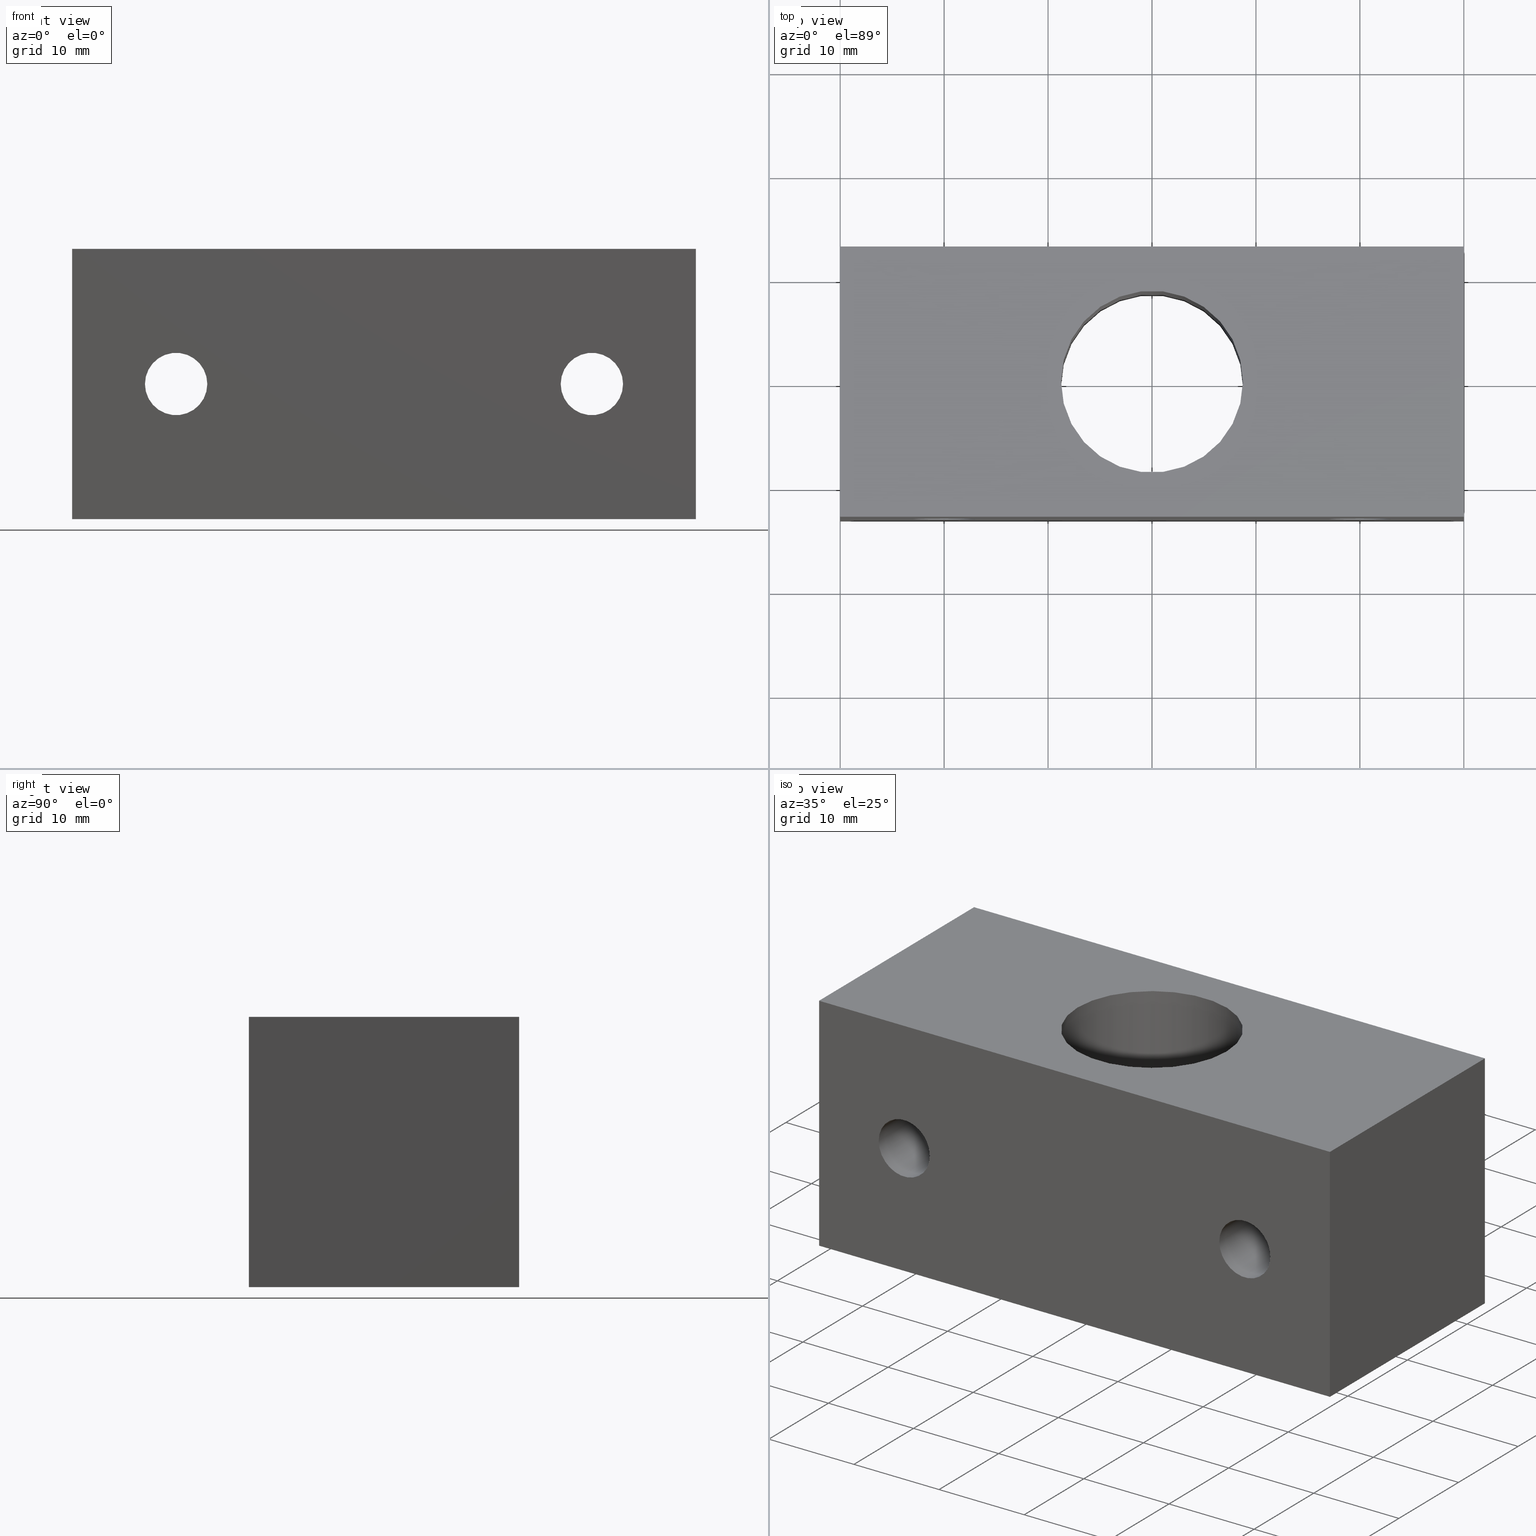
[diagram: canonical four-view strip — front | top / right | iso, engineering-drawing reading convention]
A machine part, canonical four-view strip (front | top / right | iso — engineering-drawing reading convention). The complete STEP part file that produces these views, byte-faithful:
ISO-10303-21;
HEADER;
/****************************************************************
 * Generated by software with PDE/Lib inside                    *
 * PDElib Version v4.4, created Mon 02/23/2004                  *
 * International Technegroup Inc. (www.iti-oh.com)              *
 ****************************************************************/
FILE_DESCRIPTION(('STEP AP203'),'2;1');
FILE_NAME('XT80112.stp','2011-02-02T13:28:22',(''),(''),'2009.3.110','THINKDESIGN','');
FILE_SCHEMA(('CONFIG_CONTROL_DESIGN'));
ENDSEC;
DATA;
#2=CARTESIAN_POINT('',(30.000000000000114,-13.0,-13.0));
#3=DIRECTION('',(1.0,0.0,0.0));
#4=DIRECTION('',(0.0,1.0,0.0));
#5=AXIS2_PLACEMENT_3D('',#2,#3,#4);
#6=PLANE('',#5);
#7=CARTESIAN_POINT('',(30.000000000000114,-13.0,-13.0));
#8=VERTEX_POINT('',#7);
#9=CARTESIAN_POINT('',(30.000000000000114,13.0,-13.0));
#10=VERTEX_POINT('',#9);
#11=CARTESIAN_POINT('',(30.000000000000114,-13.0,-13.0));
#12=DIRECTION('',(0.0,1.0,0.0));
#13=VECTOR('',#12,26.0);
#14=LINE('',#11,#13);
#15=EDGE_CURVE('',#8,#10,#14,.T.);
#16=ORIENTED_EDGE('',*,*,#15,.T.);
#17=CARTESIAN_POINT('',(30.000000000000114,13.0,13.0));
#18=VERTEX_POINT('',#17);
#19=CARTESIAN_POINT('',(30.000000000000114,13.0,-13.0));
#20=DIRECTION('',(0.0,0.0,1.0));
#21=VECTOR('',#20,26.0);
#22=LINE('',#19,#21);
#23=EDGE_CURVE('',#10,#18,#22,.T.);
#24=ORIENTED_EDGE('',*,*,#23,.T.);
#25=CARTESIAN_POINT('',(30.000000000000114,-13.0,13.0));
#26=VERTEX_POINT('',#25);
#27=CARTESIAN_POINT('',(30.000000000000114,-13.0,13.0));
#28=DIRECTION('',(0.0,1.0,0.0));
#29=VECTOR('',#28,26.0);
#30=LINE('',#27,#29);
#31=EDGE_CURVE('',#26,#18,#30,.T.);
#32=ORIENTED_EDGE('',*,*,#31,.F.);
#33=CARTESIAN_POINT('',(30.000000000000114,-13.0,-13.0));
#34=DIRECTION('',(0.0,0.0,1.0));
#35=VECTOR('',#34,26.0);
#36=LINE('',#33,#35);
#37=EDGE_CURVE('',#8,#26,#36,.T.);
#38=ORIENTED_EDGE('',*,*,#37,.F.);
#39=EDGE_LOOP('',(#16,#24,#32,#38));
#40=FACE_OUTER_BOUND('',#39,.T.);
#41=ADVANCED_FACE('',(#40),#6,.T.);
#42=CARTESIAN_POINT('',(30.000000000000114,13.0,-13.0));
#43=DIRECTION('',(0.0,1.0,0.0));
#44=DIRECTION('',(-1.0,0.0,0.0));
#45=AXIS2_PLACEMENT_3D('',#42,#43,#44);
#46=PLANE('',#45);
#47=CARTESIAN_POINT('',(-30.0,13.0,-13.0));
#48=VERTEX_POINT('',#47);
#49=CARTESIAN_POINT('',(30.000000000000114,13.0,-13.0));
#50=DIRECTION('',(-1.0,0.0,0.0));
#51=VECTOR('',#50,60.000000000000114);
#52=LINE('',#49,#51);
#53=EDGE_CURVE('',#10,#48,#52,.T.);
#54=ORIENTED_EDGE('',*,*,#53,.T.);
#55=CARTESIAN_POINT('',(-30.0,13.0,13.0));
#56=VERTEX_POINT('',#55);
#57=CARTESIAN_POINT('',(-30.0,13.0,-13.0));
#58=DIRECTION('',(0.0,0.0,1.0));
#59=VECTOR('',#58,26.0);
#60=LINE('',#57,#59);
#61=EDGE_CURVE('',#48,#56,#60,.T.);
#62=ORIENTED_EDGE('',*,*,#61,.T.);
#63=CARTESIAN_POINT('',(30.000000000000114,13.0,13.0));
#64=DIRECTION('',(-1.0,0.0,0.0));
#65=VECTOR('',#64,60.000000000000114);
#66=LINE('',#63,#65);
#67=EDGE_CURVE('',#18,#56,#66,.T.);
#68=ORIENTED_EDGE('',*,*,#67,.F.);
#69=ORIENTED_EDGE('',*,*,#23,.F.);
#70=EDGE_LOOP('',(#54,#62,#68,#69));
#71=FACE_OUTER_BOUND('',#70,.T.);
#72=CARTESIAN_POINT('',(14.750000000000000,13.0,0.0));
#73=VERTEX_POINT('',#72);
#74=CARTESIAN_POINT('',(25.250000000000000,13.0,0.0));
#75=VERTEX_POINT('',#74);
#76=CARTESIAN_POINT('',(20.0,13.0,0.0));
#77=DIRECTION('',(0.0,1.0,6.123234E-017));
#78=DIRECTION('',(1.0,0.0,0.0));
#79=AXIS2_PLACEMENT_3D('',#76,#77,#78);
#80=CIRCLE('',#79,5.250000000000000);
#81=EDGE_CURVE('',#73,#75,#80,.T.);
#82=ORIENTED_EDGE('',*,*,#81,.F.);
#83=CARTESIAN_POINT('',(20.0,13.0,0.0));
#84=DIRECTION('',(0.0,1.0,6.123234E-017));
#85=DIRECTION('',(1.0,0.0,0.0));
#86=AXIS2_PLACEMENT_3D('',#83,#84,#85);
#87=CIRCLE('',#86,5.250000000000000);
#88=EDGE_CURVE('',#75,#73,#87,.T.);
#89=ORIENTED_EDGE('',*,*,#88,.F.);
#90=EDGE_LOOP('',(#82,#89));
#91=FACE_BOUND('',#90,.T.);
#92=CARTESIAN_POINT('',(-25.249999999999886,13.0,0.0));
#93=VERTEX_POINT('',#92);
#94=CARTESIAN_POINT('',(-14.749999999999886,13.0,0.0));
#95=VERTEX_POINT('',#94);
#96=CARTESIAN_POINT('',(-19.999999999999886,13.0,0.0));
#97=DIRECTION('',(0.0,1.0,6.123234E-017));
#98=DIRECTION('',(1.0,0.0,0.0));
#99=AXIS2_PLACEMENT_3D('',#96,#97,#98);
#100=CIRCLE('',#99,5.250000000000000);
#101=EDGE_CURVE('',#93,#95,#100,.T.);
#102=ORIENTED_EDGE('',*,*,#101,.F.);
#103=CARTESIAN_POINT('',(-19.999999999999886,13.0,0.0));
#104=DIRECTION('',(0.0,1.0,6.123234E-017));
#105=DIRECTION('',(1.0,0.0,0.0));
#106=AXIS2_PLACEMENT_3D('',#103,#104,#105);
#107=CIRCLE('',#106,5.250000000000000);
#108=EDGE_CURVE('',#95,#93,#107,.T.);
#109=ORIENTED_EDGE('',*,*,#108,.F.);
#110=EDGE_LOOP('',(#102,#109));
#111=FACE_BOUND('',#110,.T.);
#112=ADVANCED_FACE('',(#71,#91,#111),#46,.T.);
#113=CARTESIAN_POINT('',(-30.0,13.0,-13.0));
#114=DIRECTION('',(-1.0,0.0,0.0));
#115=DIRECTION('',(0.0,-1.0,0.0));
#116=AXIS2_PLACEMENT_3D('',#113,#114,#115);
#117=PLANE('',#116);
#118=CARTESIAN_POINT('',(-30.0,-13.0,-13.0));
#119=VERTEX_POINT('',#118);
#120=CARTESIAN_POINT('',(-30.0,13.0,-13.0));
#121=DIRECTION('',(0.0,-1.0,0.0));
#122=VECTOR('',#121,26.0);
#123=LINE('',#120,#122);
#124=EDGE_CURVE('',#48,#119,#123,.T.);
#125=ORIENTED_EDGE('',*,*,#124,.T.);
#126=CARTESIAN_POINT('',(-30.0,-13.0,13.0));
#127=VERTEX_POINT('',#126);
#128=CARTESIAN_POINT('',(-30.0,-13.0,-13.0));
#129=DIRECTION('',(0.0,0.0,1.0));
#130=VECTOR('',#129,26.0);
#131=LINE('',#128,#130);
#132=EDGE_CURVE('',#119,#127,#131,.T.);
#133=ORIENTED_EDGE('',*,*,#132,.T.);
#134=CARTESIAN_POINT('',(-30.0,13.0,13.0));
#135=DIRECTION('',(0.0,-1.0,0.0));
#136=VECTOR('',#135,26.0);
#137=LINE('',#134,#136);
#138=EDGE_CURVE('',#56,#127,#137,.T.);
#139=ORIENTED_EDGE('',*,*,#138,.F.);
#140=ORIENTED_EDGE('',*,*,#61,.F.);
#141=EDGE_LOOP('',(#125,#133,#139,#140));
#142=FACE_OUTER_BOUND('',#141,.T.);
#143=ADVANCED_FACE('',(#142),#117,.T.);
#144=CARTESIAN_POINT('',(-30.0,-13.0,-13.0));
#145=DIRECTION('',(0.0,-1.0,0.0));
#146=DIRECTION('',(1.0,0.0,0.0));
#147=AXIS2_PLACEMENT_3D('',#144,#145,#146);
#148=PLANE('',#147);
#149=ORIENTED_EDGE('',*,*,#37,.T.);
#150=CARTESIAN_POINT('',(-30.0,-13.0,13.0));
#151=DIRECTION('',(1.0,0.0,0.0));
#152=VECTOR('',#151,60.000000000000114);
#153=LINE('',#150,#152);
#154=EDGE_CURVE('',#127,#26,#153,.T.);
#155=ORIENTED_EDGE('',*,*,#154,.F.);
#156=ORIENTED_EDGE('',*,*,#132,.F.);
#157=CARTESIAN_POINT('',(-30.0,-13.0,-13.0));
#158=DIRECTION('',(1.0,0.0,0.0));
#159=VECTOR('',#158,60.000000000000114);
#160=LINE('',#157,#159);
#161=EDGE_CURVE('',#119,#8,#160,.T.);
#162=ORIENTED_EDGE('',*,*,#161,.T.);
#163=EDGE_LOOP('',(#149,#155,#156,#162));
#164=FACE_OUTER_BOUND('',#163,.T.);
#165=CARTESIAN_POINT('',(-16.999999999999886,-13.0,0.0));
#166=VERTEX_POINT('',#165);
#167=CARTESIAN_POINT('',(-22.999999999999876,-13.0,0.0));
#168=VERTEX_POINT('',#167);
#169=CARTESIAN_POINT('',(-19.999999999999886,-13.0,0.0));
#170=DIRECTION('',(0.0,1.0,6.123234E-017));
#171=DIRECTION('',(1.0,0.0,0.0));
#172=AXIS2_PLACEMENT_3D('',#169,#170,#171);
#173=CIRCLE('',#172,2.999999999999988);
#174=EDGE_CURVE('',#166,#168,#173,.T.);
#175=ORIENTED_EDGE('',*,*,#174,.T.);
#176=CARTESIAN_POINT('',(-19.999999999999886,-13.0,0.0));
#177=DIRECTION('',(0.0,1.0,6.123234E-017));
#178=DIRECTION('',(1.0,0.0,0.0));
#179=AXIS2_PLACEMENT_3D('',#176,#177,#178);
#180=CIRCLE('',#179,2.999999999999988);
#181=EDGE_CURVE('',#168,#166,#180,.T.);
#182=ORIENTED_EDGE('',*,*,#181,.T.);
#183=EDGE_LOOP('',(#175,#182));
#184=FACE_BOUND('',#183,.T.);
#185=CARTESIAN_POINT('',(23.0,-13.0,0.0));
#186=VERTEX_POINT('',#185);
#187=CARTESIAN_POINT('',(17.000000000000011,-13.0,0.0));
#188=VERTEX_POINT('',#187);
#189=CARTESIAN_POINT('',(20.0,-13.0,0.0));
#190=DIRECTION('',(0.0,1.0,6.123234E-017));
#191=DIRECTION('',(1.0,0.0,0.0));
#192=AXIS2_PLACEMENT_3D('',#189,#190,#191);
#193=CIRCLE('',#192,2.999999999999988);
#194=EDGE_CURVE('',#186,#188,#193,.T.);
#195=ORIENTED_EDGE('',*,*,#194,.T.);
#196=CARTESIAN_POINT('',(20.0,-13.0,0.0));
#197=DIRECTION('',(0.0,1.0,6.123234E-017));
#198=DIRECTION('',(1.0,0.0,0.0));
#199=AXIS2_PLACEMENT_3D('',#196,#197,#198);
#200=CIRCLE('',#199,2.999999999999988);
#201=EDGE_CURVE('',#188,#186,#200,.T.);
#202=ORIENTED_EDGE('',*,*,#201,.T.);
#203=EDGE_LOOP('',(#195,#202));
#204=FACE_BOUND('',#203,.T.);
#205=ADVANCED_FACE('',(#164,#184,#204),#148,.T.);
#206=CARTESIAN_POINT('',(-36.000120001825735,-15.600120001972186,-13.0));
#207=DIRECTION('',(0.0,0.0,1.0));
#208=DIRECTION('',(1.0,0.0,0.0));
#209=AXIS2_PLACEMENT_3D('',#206,#207,#208);
#210=PLANE('',#209);
#211=ORIENTED_EDGE('',*,*,#161,.F.);
#212=ORIENTED_EDGE('',*,*,#124,.F.);
#213=ORIENTED_EDGE('',*,*,#53,.F.);
#214=ORIENTED_EDGE('',*,*,#15,.F.);
#215=EDGE_LOOP('',(#211,#212,#213,#214));
#216=FACE_OUTER_BOUND('',#215,.T.);
#217=CARTESIAN_POINT('',(-8.750000000000000,0.0,-13.0));
#218=VERTEX_POINT('',#217);
#219=CARTESIAN_POINT('',(8.750000000000000,0.0,-13.0));
#220=VERTEX_POINT('',#219);
#221=CARTESIAN_POINT('',(0.0,0.0,-13.0));
#222=DIRECTION('',(0.0,0.0,-1.0));
#223=DIRECTION('',(1.0,0.0,0.0));
#224=AXIS2_PLACEMENT_3D('',#221,#222,#223);
#225=CIRCLE('',#224,8.750000000000000);
#226=EDGE_CURVE('',#218,#220,#225,.T.);
#227=ORIENTED_EDGE('',*,*,#226,.F.);
#228=CARTESIAN_POINT('',(0.0,0.0,-13.0));
#229=DIRECTION('',(0.0,0.0,-1.0));
#230=DIRECTION('',(1.0,0.0,0.0));
#231=AXIS2_PLACEMENT_3D('',#228,#229,#230);
#232=CIRCLE('',#231,8.750000000000000);
#233=EDGE_CURVE('',#220,#218,#232,.T.);
#234=ORIENTED_EDGE('',*,*,#233,.F.);
#235=EDGE_LOOP('',(#227,#234));
#236=FACE_BOUND('',#235,.T.);
#237=ADVANCED_FACE('',(#216,#236),#210,.F.);
#238=CARTESIAN_POINT('',(-36.000120001825735,-15.600120001972186,13.0));
#239=DIRECTION('',(0.0,0.0,1.0));
#240=DIRECTION('',(1.0,0.0,0.0));
#241=AXIS2_PLACEMENT_3D('',#238,#239,#240);
#242=PLANE('',#241);
#243=ORIENTED_EDGE('',*,*,#31,.T.);
#244=ORIENTED_EDGE('',*,*,#67,.T.);
#245=ORIENTED_EDGE('',*,*,#138,.T.);
#246=ORIENTED_EDGE('',*,*,#154,.T.);
#247=EDGE_LOOP('',(#243,#244,#245,#246));
#248=FACE_OUTER_BOUND('',#247,.T.);
#249=CARTESIAN_POINT('',(-8.750000000000000,0.0,13.0));
#250=VERTEX_POINT('',#249);
#251=CARTESIAN_POINT('',(8.750000000000000,0.0,13.0));
#252=VERTEX_POINT('',#251);
#253=CARTESIAN_POINT('',(0.0,0.0,13.0));
#254=DIRECTION('',(0.0,0.0,1.0));
#255=DIRECTION('',(1.0,0.0,0.0));
#256=AXIS2_PLACEMENT_3D('',#253,#254,#255);
#257=CIRCLE('',#256,8.750000000000000);
#258=EDGE_CURVE('',#250,#252,#257,.T.);
#259=ORIENTED_EDGE('',*,*,#258,.F.);
#260=CARTESIAN_POINT('',(0.0,0.0,13.0));
#261=DIRECTION('',(0.0,0.0,1.0));
#262=DIRECTION('',(1.0,0.0,0.0));
#263=AXIS2_PLACEMENT_3D('',#260,#261,#262);
#264=CIRCLE('',#263,8.750000000000000);
#265=EDGE_CURVE('',#252,#250,#264,.T.);
#266=ORIENTED_EDGE('',*,*,#265,.F.);
#267=EDGE_LOOP('',(#259,#266));
#268=FACE_BOUND('',#267,.T.);
#269=ADVANCED_FACE('',(#248,#268),#242,.T.);
#270=CARTESIAN_POINT('',(0.0,0.0,13.0));
#271=DIRECTION('',(0.0,0.0,1.0));
#272=DIRECTION('',(1.0,0.0,0.0));
#273=AXIS2_PLACEMENT_3D('',#270,#271,#272);
#274=CYLINDRICAL_SURFACE('',#273,8.750000000000000);
#275=CARTESIAN_POINT('',(8.750000000000000,0.0,13.0));
#276=DIRECTION('',(0.0,0.0,-1.0));
#277=VECTOR('',#276,26.0);
#278=LINE('',#275,#277);
#279=EDGE_CURVE('',#252,#220,#278,.T.);
#280=ORIENTED_EDGE('',*,*,#279,.T.);
#281=ORIENTED_EDGE('',*,*,#233,.T.);
#282=ORIENTED_EDGE('',*,*,#226,.T.);
#283=ORIENTED_EDGE('',*,*,#279,.F.);
#284=ORIENTED_EDGE('',*,*,#265,.T.);
#285=ORIENTED_EDGE('',*,*,#258,.T.);
#286=EDGE_LOOP('',(#280,#281,#282,#283,#284,#285));
#287=FACE_OUTER_BOUND('',#286,.T.);
#288=ADVANCED_FACE('',(#287),#274,.F.);
#289=CARTESIAN_POINT('',(-19.999999999999886,13.0,0.0));
#290=DIRECTION('',(0.0,1.0,6.123234E-017));
#291=DIRECTION('',(1.0,0.0,0.0));
#292=AXIS2_PLACEMENT_3D('',#289,#290,#291);
#293=CYLINDRICAL_SURFACE('',#292,2.999999999999988);
#294=ORIENTED_EDGE('',*,*,#181,.F.);
#295=ORIENTED_EDGE('',*,*,#174,.F.);
#296=CARTESIAN_POINT('',(-16.999999999999886,7.000004422703000,0.0));
#297=VERTEX_POINT('',#296);
#298=CARTESIAN_POINT('',(-16.999999999999886,7.000004422702999,0.0));
#299=DIRECTION('',(0.0,-1.0,0.0));
#300=VECTOR('',#299,20.000004422703004);
#301=LINE('',#298,#300);
#302=EDGE_CURVE('',#297,#166,#301,.T.);
#303=ORIENTED_EDGE('',*,*,#302,.F.);
#304=CARTESIAN_POINT('',(-22.999999999999876,7.000004422703000,0.0));
#305=VERTEX_POINT('',#304);
#306=CARTESIAN_POINT('',(-19.999999999999886,7.000004422703000,0.0));
#307=DIRECTION('',(0.0,1.0,6.123234E-017));
#308=DIRECTION('',(1.0,0.0,0.0));
#309=AXIS2_PLACEMENT_3D('',#306,#307,#308);
#310=CIRCLE('',#309,2.999999999999988);
#311=EDGE_CURVE('',#297,#305,#310,.T.);
#312=ORIENTED_EDGE('',*,*,#311,.T.);
#313=CARTESIAN_POINT('',(-19.999999999999886,7.000004422703000,0.0));
#314=DIRECTION('',(0.0,1.0,6.123234E-017));
#315=DIRECTION('',(1.0,0.0,0.0));
#316=AXIS2_PLACEMENT_3D('',#313,#314,#315);
#317=CIRCLE('',#316,2.999999999999988);
#318=EDGE_CURVE('',#305,#297,#317,.T.);
#319=ORIENTED_EDGE('',*,*,#318,.T.);
#320=ORIENTED_EDGE('',*,*,#302,.T.);
#321=EDGE_LOOP('',(#294,#295,#303,#312,#319,#320));
#322=FACE_OUTER_BOUND('',#321,.T.);
#323=ADVANCED_FACE('',(#322),#293,.F.);
#324=CARTESIAN_POINT('',(20.0,13.0,0.0));
#325=DIRECTION('',(0.0,1.0,6.123234E-017));
#326=DIRECTION('',(1.0,0.0,0.0));
#327=AXIS2_PLACEMENT_3D('',#324,#325,#326);
#328=CYLINDRICAL_SURFACE('',#327,2.999999999999988);
#329=ORIENTED_EDGE('',*,*,#201,.F.);
#330=ORIENTED_EDGE('',*,*,#194,.F.);
#331=CARTESIAN_POINT('',(23.0,7.000004422703000,0.0));
#332=VERTEX_POINT('',#331);
#333=CARTESIAN_POINT('',(23.0,7.000004422702999,0.0));
#334=DIRECTION('',(0.0,-1.0,0.0));
#335=VECTOR('',#334,20.000004422703004);
#336=LINE('',#333,#335);
#337=EDGE_CURVE('',#332,#186,#336,.T.);
#338=ORIENTED_EDGE('',*,*,#337,.F.);
#339=CARTESIAN_POINT('',(17.000000000000011,7.000004422703000,0.0));
#340=VERTEX_POINT('',#339);
#341=CARTESIAN_POINT('',(20.0,7.000004422703000,0.0));
#342=DIRECTION('',(0.0,1.0,6.123234E-017));
#343=DIRECTION('',(1.0,0.0,0.0));
#344=AXIS2_PLACEMENT_3D('',#341,#342,#343);
#345=CIRCLE('',#344,2.999999999999988);
#346=EDGE_CURVE('',#332,#340,#345,.T.);
#347=ORIENTED_EDGE('',*,*,#346,.T.);
#348=CARTESIAN_POINT('',(20.0,7.000004422703000,0.0));
#349=DIRECTION('',(0.0,1.0,6.123234E-017));
#350=DIRECTION('',(1.0,0.0,0.0));
#351=AXIS2_PLACEMENT_3D('',#348,#349,#350);
#352=CIRCLE('',#351,2.999999999999988);
#353=EDGE_CURVE('',#340,#332,#352,.T.);
#354=ORIENTED_EDGE('',*,*,#353,.T.);
#355=ORIENTED_EDGE('',*,*,#337,.T.);
#356=EDGE_LOOP('',(#329,#330,#338,#347,#354,#355));
#357=FACE_OUTER_BOUND('',#356,.T.);
#358=ADVANCED_FACE('',(#357),#328,.F.);
#359=CARTESIAN_POINT('',(20.0,13.0,0.0));
#360=DIRECTION('',(0.0,1.0,6.123234E-017));
#361=DIRECTION('',(1.0,0.0,0.0));
#362=AXIS2_PLACEMENT_3D('',#359,#360,#361);
#363=CYLINDRICAL_SURFACE('',#362,5.250000000000000);
#364=CARTESIAN_POINT('',(14.750000000000000,7.000004422703000,0.0));
#365=VERTEX_POINT('',#364);
#366=CARTESIAN_POINT('',(25.250000000000000,7.000004422703000,0.0));
#367=VERTEX_POINT('',#366);
#368=CARTESIAN_POINT('',(20.0,7.000004422703000,0.0));
#369=DIRECTION('',(0.0,1.0,6.123234E-017));
#370=DIRECTION('',(1.0,0.0,0.0));
#371=AXIS2_PLACEMENT_3D('',#368,#369,#370);
#372=CIRCLE('',#371,5.250000000000000);
#373=EDGE_CURVE('',#365,#367,#372,.T.);
#374=ORIENTED_EDGE('',*,*,#373,.F.);
#375=CARTESIAN_POINT('',(20.0,7.000004422703000,0.0));
#376=DIRECTION('',(0.0,1.0,6.123234E-017));
#377=DIRECTION('',(1.0,0.0,0.0));
#378=AXIS2_PLACEMENT_3D('',#375,#376,#377);
#379=CIRCLE('',#378,5.250000000000000);
#380=EDGE_CURVE('',#367,#365,#379,.T.);
#381=ORIENTED_EDGE('',*,*,#380,.F.);
#382=CARTESIAN_POINT('',(25.250000000000000,13.0,0.0));
#383=DIRECTION('',(0.0,-1.0,0.0));
#384=VECTOR('',#383,5.999995577297000);
#385=LINE('',#382,#384);
#386=EDGE_CURVE('',#75,#367,#385,.T.);
#387=ORIENTED_EDGE('',*,*,#386,.F.);
#388=ORIENTED_EDGE('',*,*,#88,.T.);
#389=ORIENTED_EDGE('',*,*,#81,.T.);
#390=ORIENTED_EDGE('',*,*,#386,.T.);
#391=EDGE_LOOP('',(#374,#381,#387,#388,#389,#390));
#392=FACE_OUTER_BOUND('',#391,.T.);
#393=ADVANCED_FACE('',(#392),#363,.F.);
#394=CARTESIAN_POINT('',(26.300120000064567,7.000004422703000,-6.300120000066912));
#395=DIRECTION('',(0.0,1.0,0.0));
#396=DIRECTION('',(-1.0,0.0,0.0));
#397=AXIS2_PLACEMENT_3D('',#394,#395,#396);
#398=PLANE('',#397);
#399=ORIENTED_EDGE('',*,*,#380,.T.);
#400=ORIENTED_EDGE('',*,*,#373,.T.);
#401=EDGE_LOOP('',(#399,#400));
#402=FACE_OUTER_BOUND('',#401,.T.);
#403=ORIENTED_EDGE('',*,*,#353,.F.);
#404=ORIENTED_EDGE('',*,*,#346,.F.);
#405=EDGE_LOOP('',(#403,#404));
#406=FACE_BOUND('',#405,.T.);
#407=ADVANCED_FACE('',(#402,#406),#398,.T.);
#408=CARTESIAN_POINT('',(-19.999999999999886,13.0,0.0));
#409=DIRECTION('',(0.0,1.0,6.123234E-017));
#410=DIRECTION('',(1.0,0.0,0.0));
#411=AXIS2_PLACEMENT_3D('',#408,#409,#410);
#412=CYLINDRICAL_SURFACE('',#411,5.250000000000000);
#413=CARTESIAN_POINT('',(-25.249999999999886,7.000004422703000,0.0));
#414=VERTEX_POINT('',#413);
#415=CARTESIAN_POINT('',(-14.749999999999886,7.000004422703000,0.0));
#416=VERTEX_POINT('',#415);
#417=CARTESIAN_POINT('',(-19.999999999999886,7.000004422703000,0.0));
#418=DIRECTION('',(0.0,1.0,6.123234E-017));
#419=DIRECTION('',(1.0,0.0,0.0));
#420=AXIS2_PLACEMENT_3D('',#417,#418,#419);
#421=CIRCLE('',#420,5.250000000000000);
#422=EDGE_CURVE('',#414,#416,#421,.T.);
#423=ORIENTED_EDGE('',*,*,#422,.F.);
#424=CARTESIAN_POINT('',(-19.999999999999886,7.000004422703000,0.0));
#425=DIRECTION('',(0.0,1.0,6.123234E-017));
#426=DIRECTION('',(1.0,0.0,0.0));
#427=AXIS2_PLACEMENT_3D('',#424,#425,#426);
#428=CIRCLE('',#427,5.250000000000000);
#429=EDGE_CURVE('',#416,#414,#428,.T.);
#430=ORIENTED_EDGE('',*,*,#429,.F.);
#431=CARTESIAN_POINT('',(-14.749999999999886,13.0,0.0));
#432=DIRECTION('',(0.0,-1.0,0.0));
#433=VECTOR('',#432,5.999995577297000);
#434=LINE('',#431,#433);
#435=EDGE_CURVE('',#95,#416,#434,.T.);
#436=ORIENTED_EDGE('',*,*,#435,.F.);
#437=ORIENTED_EDGE('',*,*,#108,.T.);
#438=ORIENTED_EDGE('',*,*,#101,.T.);
#439=ORIENTED_EDGE('',*,*,#435,.T.);
#440=EDGE_LOOP('',(#423,#430,#436,#437,#438,#439));
#441=FACE_OUTER_BOUND('',#440,.T.);
#442=ADVANCED_FACE('',(#441),#412,.F.);
#443=CARTESIAN_POINT('',(-13.699879999958625,7.000004422703000,-6.300120000066912));
#444=DIRECTION('',(0.0,1.0,0.0));
#445=DIRECTION('',(-1.0,0.0,0.0));
#446=AXIS2_PLACEMENT_3D('',#443,#444,#445);
#447=PLANE('',#446);
#448=ORIENTED_EDGE('',*,*,#429,.T.);
#449=ORIENTED_EDGE('',*,*,#422,.T.);
#450=EDGE_LOOP('',(#448,#449));
#451=FACE_OUTER_BOUND('',#450,.T.);
#452=ORIENTED_EDGE('',*,*,#318,.F.);
#453=ORIENTED_EDGE('',*,*,#311,.F.);
#454=EDGE_LOOP('',(#452,#453));
#455=FACE_BOUND('',#454,.T.);
#456=ADVANCED_FACE('',(#451,#455),#447,.T.);
#457=CLOSED_SHELL('',(#41,#112,#143,#205,#237,#269,#288,#323,#358,#393,#407,#442,#456));
#458=MANIFOLD_SOLID_BREP('',#457);
#464=(NAMED_UNIT(*)PLANE_ANGLE_UNIT()SI_UNIT($,.RADIAN.));
#465=DIMENSIONAL_EXPONENTS(0.0,0.0,0.0,0.0,0.0,0.0,0.0);
#466=PLANE_ANGLE_MEASURE_WITH_UNIT(PLANE_ANGLE_MEASURE(0.017453292500000),#464);
#470=(CONVERSION_BASED_UNIT('DEGREE',#466)NAMED_UNIT(#465)PLANE_ANGLE_UNIT());
#474=(NAMED_UNIT(*)SI_UNIT($,.STERADIAN.)SOLID_ANGLE_UNIT());
#478=(LENGTH_UNIT()NAMED_UNIT(*)SI_UNIT(.MILLI.,.METRE.));
#480=UNCERTAINTY_MEASURE_WITH_UNIT(LENGTH_MEASURE(0.001000000000000),#478,'DISTANCE_ACCURACY_VALUE','');
#482=(GEOMETRIC_REPRESENTATION_CONTEXT(3)GLOBAL_UNCERTAINTY_ASSIGNED_CONTEXT((#480))GLOBAL_UNIT_ASSIGNED_CONTEXT((#470,#474,#478))REPRESENTATION_CONTEXT('thinkdesign','2009.3.110'));
#483=ADVANCED_BREP_SHAPE_REPRESENTATION('',(#458),#482);
#484=APPLICATION_CONTEXT('configuration controlled 3D designs of mechanical parts and assemblies');
#485=APPLICATION_PROTOCOL_DEFINITION('International Standard','config_control_design',1995,#484);
#486=MECHANICAL_CONTEXT('None',#484,'mechanical');
#487=PRODUCT('None','None','None',(#486));
#488=PRODUCT_RELATED_PRODUCT_CATEGORY('detail',$,(#487));
#489=PRODUCT_CATEGORY('part',$);
#490=PRODUCT_CATEGORY_RELATIONSHIP('None','None',#489,#488);
#491=PERSON('PERSON1','None','None',$,$,$);
#492=ORGANIZATION('','None','None');
#493=PERSON_AND_ORGANIZATION(#491,#492);
#494=PERSON_AND_ORGANIZATION_ROLE('design_owner');
#495=CC_DESIGN_PERSON_AND_ORGANIZATION_ASSIGNMENT(#493,#494,(#487));
#496=PRODUCT_DEFINITION_FORMATION_WITH_SPECIFIED_SOURCE('None','None',#487,.NOT_KNOWN.);
#497=PERSON('PERSON2','None','None',$,$,$);
#498=ORGANIZATION('','None','None');
#499=PERSON_AND_ORGANIZATION(#497,#498);
#500=PERSON_AND_ORGANIZATION_ROLE('creator');
#501=CC_DESIGN_PERSON_AND_ORGANIZATION_ASSIGNMENT(#499,#500,(#496));
#502=PERSON('PERSON3','None','None',$,$,$);
#503=ORGANIZATION('','None','None');
#504=PERSON_AND_ORGANIZATION(#502,#503);
#505=PERSON_AND_ORGANIZATION_ROLE('part_supplier');
#506=CC_DESIGN_PERSON_AND_ORGANIZATION_ASSIGNMENT(#504,#505,(#496));
#507=APPROVAL_STATUS('approved');
#508=APPROVAL(#507,'None');
#509=PERSON('PERSON4','None','None',$,$,$);
#510=ORGANIZATION('','None','None');
#511=PERSON_AND_ORGANIZATION(#509,#510);
#512=APPROVAL_ROLE('None');
#513=APPROVAL_PERSON_ORGANIZATION(#511,#508,#512);
#514=CALENDAR_DATE(2011,2,2);
#515=COORDINATED_UNIVERSAL_TIME_OFFSET(0,0,.AHEAD.);
#516=LOCAL_TIME(13,28,22.0,#515);
#517=DATE_AND_TIME(#514,#516);
#518=APPROVAL_DATE_TIME(#517,#508);
#519=CC_DESIGN_APPROVAL(#508,(#496));
#520=SECURITY_CLASSIFICATION_LEVEL('unclassified');
#521=SECURITY_CLASSIFICATION('None','None',#520);
#522=CC_DESIGN_SECURITY_CLASSIFICATION(#521,(#496));
#523=APPROVAL_STATUS('approved');
#524=APPROVAL(#523,'None');
#525=PERSON('PERSON5','None','None',$,$,$);
#526=ORGANIZATION('','None','None');
#527=PERSON_AND_ORGANIZATION(#525,#526);
#528=APPROVAL_ROLE('None');
#529=APPROVAL_PERSON_ORGANIZATION(#527,#524,#528);
#530=CALENDAR_DATE(2011,2,2);
#531=COORDINATED_UNIVERSAL_TIME_OFFSET(0,0,.AHEAD.);
#532=LOCAL_TIME(13,28,22.0,#531);
#533=DATE_AND_TIME(#530,#532);
#534=APPROVAL_DATE_TIME(#533,#524);
#535=CC_DESIGN_APPROVAL(#524,(#521));
#536=PERSON('PERSON6','None','None',$,$,$);
#537=ORGANIZATION('','None','None');
#538=PERSON_AND_ORGANIZATION(#536,#537);
#539=PERSON_AND_ORGANIZATION_ROLE('classification_officer');
#540=CC_DESIGN_PERSON_AND_ORGANIZATION_ASSIGNMENT(#538,#539,(#521));
#541=DATE_TIME_ROLE('classification_date');
#542=CALENDAR_DATE(2011,2,2);
#543=COORDINATED_UNIVERSAL_TIME_OFFSET(0,0,.AHEAD.);
#544=LOCAL_TIME(13,28,22.0,#543);
#545=DATE_AND_TIME(#542,#544);
#546=CC_DESIGN_DATE_AND_TIME_ASSIGNMENT(#545,#541,(#521));
#547=DESIGN_CONTEXT('part definition',#484,'design');
#548=DOCUMENT_TYPE('cad_filename');
#549=DOCUMENT('None','None','None',#548);
#550=PRODUCT_DEFINITION_WITH_ASSOCIATED_DOCUMENTS('None','None',#496,#547,(#549));
#551=PERSON('PERSON7','None','None',$,$,$);
#552=ORGANIZATION('','None','None');
#553=PERSON_AND_ORGANIZATION(#551,#552);
#554=PERSON_AND_ORGANIZATION_ROLE('creator');
#555=CC_DESIGN_PERSON_AND_ORGANIZATION_ASSIGNMENT(#553,#554,(#550));
#556=DATE_TIME_ROLE('creation_date');
#557=CALENDAR_DATE(2011,2,2);
#558=COORDINATED_UNIVERSAL_TIME_OFFSET(0,0,.AHEAD.);
#559=LOCAL_TIME(13,28,22.0,#558);
#560=DATE_AND_TIME(#557,#559);
#561=CC_DESIGN_DATE_AND_TIME_ASSIGNMENT(#560,#556,(#550));
#562=APPROVAL_STATUS('approved');
#563=APPROVAL(#562,'None');
#564=PERSON('PERSON8','None','None',$,$,$);
#565=ORGANIZATION('','None','None');
#566=PERSON_AND_ORGANIZATION(#564,#565);
#567=APPROVAL_ROLE('None');
#568=APPROVAL_PERSON_ORGANIZATION(#566,#563,#567);
#569=CALENDAR_DATE(2011,2,2);
#570=COORDINATED_UNIVERSAL_TIME_OFFSET(0,0,.AHEAD.);
#571=LOCAL_TIME(13,28,22.0,#570);
#572=DATE_AND_TIME(#569,#571);
#573=APPROVAL_DATE_TIME(#572,#563);
#574=CC_DESIGN_APPROVAL(#563,(#550));
#575=PRODUCT_DEFINITION_SHAPE('None','None',#550);
#576=SHAPE_DEFINITION_REPRESENTATION(#575,#483);
#577=DIMENSIONAL_EXPONENTS(0.0,0.0,0.0,0.0,0.0,0.0,0.0);
#578=DIMENSIONAL_EXPONENTS(1.0,0.0,0.0,0.0,0.0,0.0,0.0);
ENDSEC;
END-ISO-10303-21;
